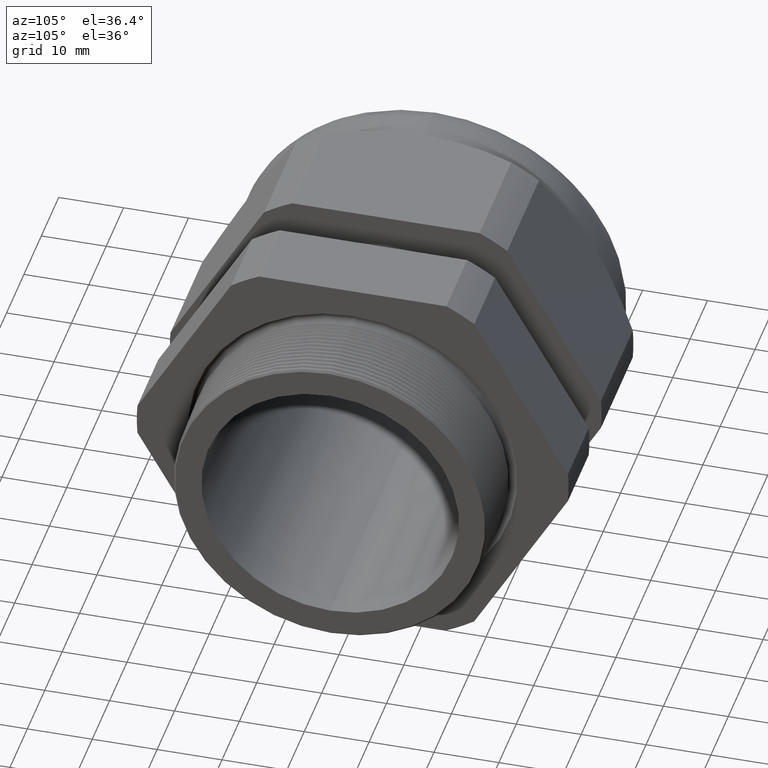
[diagram: clean part render]
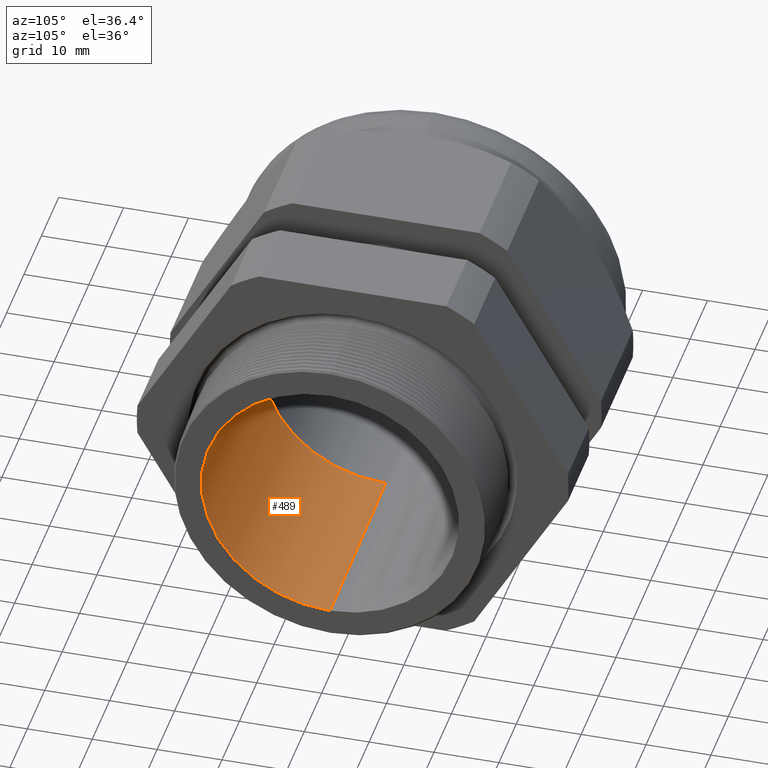
[diagram: same view with one face highlighted and labeled with its STEP entity id]
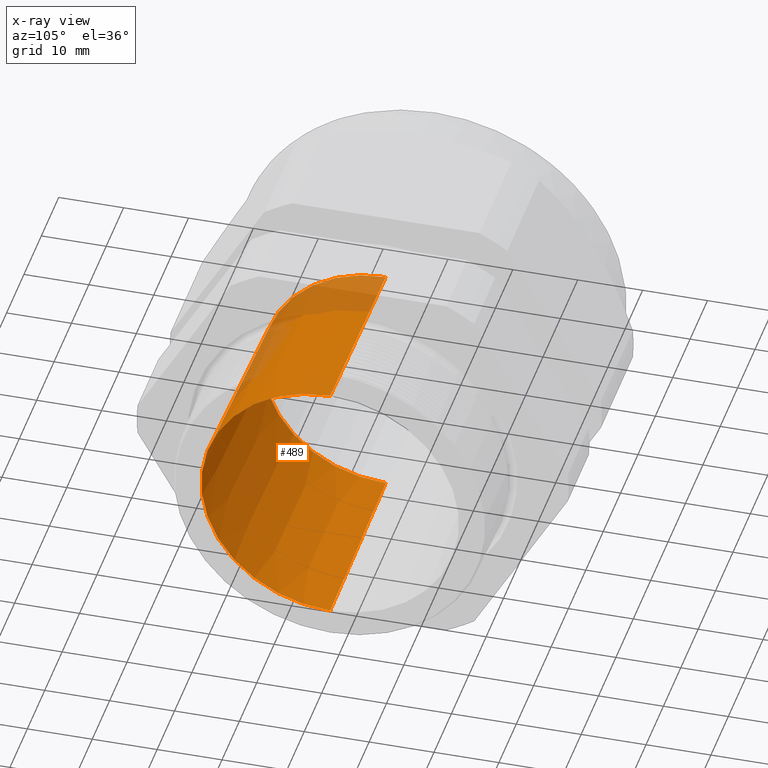
[diagram: x-ray of the same camera — body ghosted, the highlighted face saturated]
A machine part, auxiliary view. The second image highlights one B-rep face of the part: STEP entity #489.
The next image is the same camera in x-ray: the body ghosted, the highlighted face saturated — about 12% of this face is hidden behind the body in this view.
In plain terms, the highlighted conical surface has half-angle 1.458 deg.
Its self-contained STEP definition (entity closure, byte-faithful):
#462 = ORIENTED_EDGE ( 'NONE', *, *, #463, .T. ) ;
#463 = EDGE_CURVE ( 'NONE', #483, #464, #2437, .T. ) ;
#464 = VERTEX_POINT ( 'NONE', #2428 ) ;
#465 = ORIENTED_EDGE ( 'NONE', *, *, #466, .T. ) ;
#466 = EDGE_CURVE ( 'NONE', #464, #467, #2427, .T. ) ;
#467 = VERTEX_POINT ( 'NONE', #2422 ) ;
#468 = ORIENTED_EDGE ( 'NONE', *, *, #469, .F. ) ;
#469 = EDGE_CURVE ( 'NONE', #486, #467, #2421, .T. ) ;
#483 = VERTEX_POINT ( 'NONE', #2459 ) ;
#485 = EDGE_CURVE ( 'NONE', #483, #486, #2458, .T. ) ;
#486 = VERTEX_POINT ( 'NONE', #2453 ) ;
#489 = ADVANCED_FACE ( 'NONE', ( #2447 ), #2448, .F. ) ;
#490 = EDGE_LOOP ( 'NONE', ( #491, #462, #465, #468 ) ) ;
#491 = ORIENTED_EDGE ( 'NONE', *, *, #485, .F. ) ;
#2418 = DIRECTION ( 'NONE',  ( 0.9996762947271695700, 0.0000000000000000000, -0.02544220431796574000 ) ) ;
#2419 = VECTOR ( 'NONE', #2418, 39.37007874015748100 ) ;
#2420 = CARTESIAN_POINT ( 'NONE',  ( -1.058802799999999400, 0.0000000000000000000, -0.7500000000000001100 ) ) ;
#2421 = LINE ( 'NONE', #2420, #2419 ) ;
#2422 = CARTESIAN_POINT ( 'NONE',  ( 0.2000000000000000400, 0.0000000000000000000, -0.7820370886081360300 ) ) ;
#2423 = DIRECTION ( 'NONE',  ( 0.0000000000000000000, 0.0000000000000000000, -1.000000000000000000 ) ) ;
#2424 = DIRECTION ( 'NONE',  ( 1.000000000000000000, 0.0000000000000000000, 0.0000000000000000000 ) ) ;
#2425 = CARTESIAN_POINT ( 'NONE',  ( 0.2000000000000000400, 0.0000000000000000000, 0.0000000000000000000 ) ) ;
#2426 = AXIS2_PLACEMENT_3D ( 'NONE', #2425, #2424, #2423 ) ;
#2427 = CIRCLE ( 'NONE', #2426, 0.7820370886081360300 ) ;
#2428 = CARTESIAN_POINT ( 'NONE',  ( 0.2000000000000000400, 9.577192173784689300E-017, 0.7820370886081360300 ) ) ;
#2429 = DIRECTION ( 'NONE',  ( 0.9996762947271695700, 3.115771408124971500E-018, 0.02544220431796574000 ) ) ;
#2430 = VECTOR ( 'NONE', #2429, 39.37007874015748100 ) ;
#2431 = CARTESIAN_POINT ( 'NONE',  ( -1.058802799999999400, 9.184850993605150900E-017, 0.7500000000000001100 ) ) ;
#2437 = LINE ( 'NONE', #2431, #2430 ) ;
#2447 = FACE_OUTER_BOUND ( 'NONE', #490, .T. ) ;
#2448 = CONICAL_SURFACE ( 'NONE', #2509, 0.7500000000000001100, 0.02544494993204031400 ) ;
#2453 = CARTESIAN_POINT ( 'NONE',  ( -1.058802799999999400, 0.0000000000000000000, -0.7500000000000001100 ) ) ;
#2454 = DIRECTION ( 'NONE',  ( 0.0000000000000000000, 0.0000000000000000000, -1.000000000000000000 ) ) ;
#2455 = DIRECTION ( 'NONE',  ( 1.000000000000000000, 0.0000000000000000000, 0.0000000000000000000 ) ) ;
#2456 = CARTESIAN_POINT ( 'NONE',  ( -1.058802799999999400, 0.0000000000000000000, 0.0000000000000000000 ) ) ;
#2457 = AXIS2_PLACEMENT_3D ( 'NONE', #2456, #2455, #2454 ) ;
#2458 = CIRCLE ( 'NONE', #2457, 0.7500000000000001100 ) ;
#2459 = CARTESIAN_POINT ( 'NONE',  ( -1.058802799999999400, 9.381021583694917600E-017, 0.7500000000000001100 ) ) ;
#2506 = DIRECTION ( 'NONE',  ( 0.0000000000000000000, 0.0000000000000000000, -1.000000000000000000 ) ) ;
#2507 = DIRECTION ( 'NONE',  ( 1.000000000000000000, 0.0000000000000000000, 0.0000000000000000000 ) ) ;
#2508 = CARTESIAN_POINT ( 'NONE',  ( -1.058802799999999400, 0.0000000000000000000, 0.0000000000000000000 ) ) ;
#2509 = AXIS2_PLACEMENT_3D ( 'NONE', #2508, #2507, #2506 ) ;